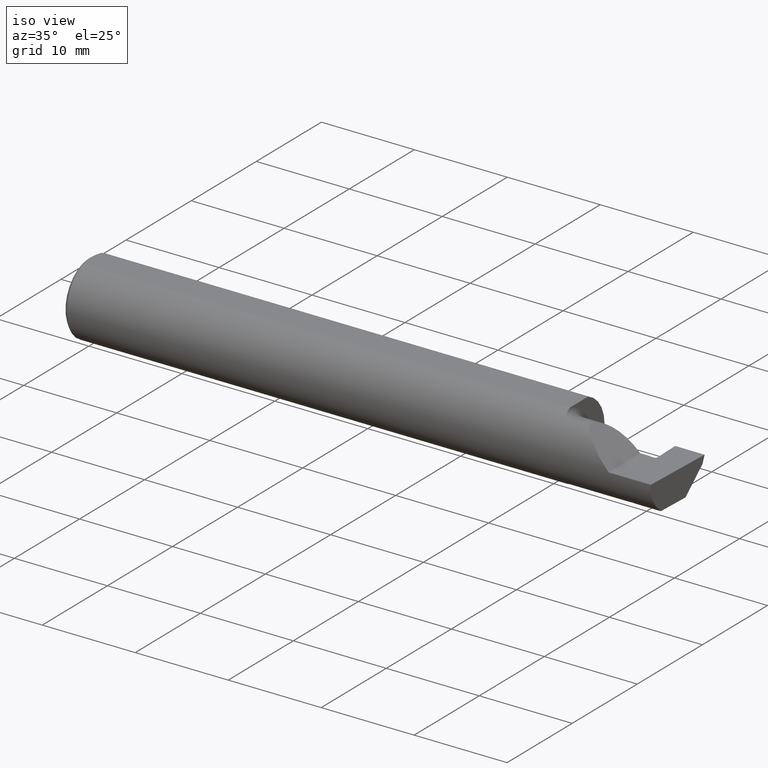
[diagram: clean part render]
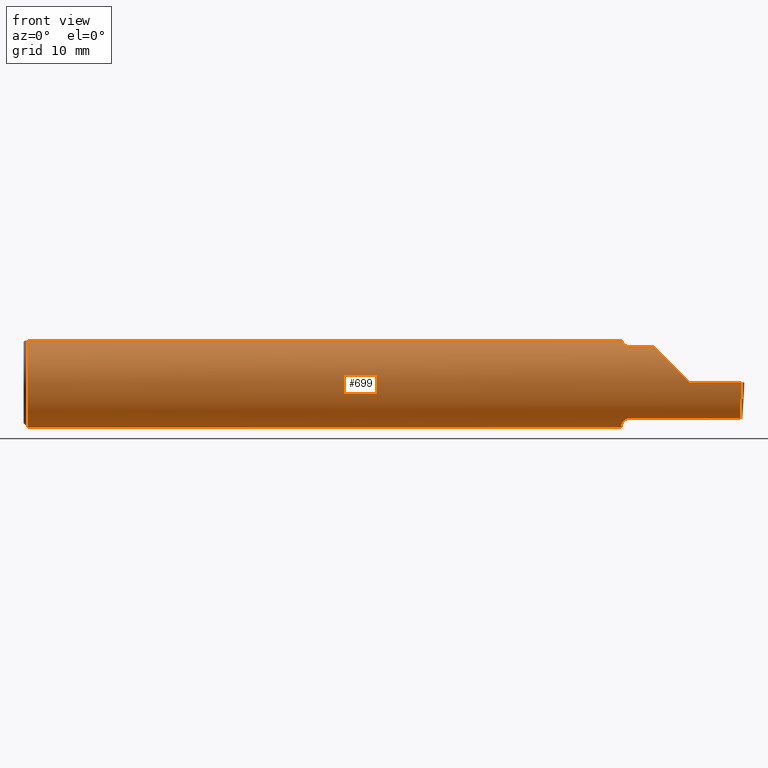
[diagram: tour spotlight — one face highlighted and labeled with its STEP entity id]
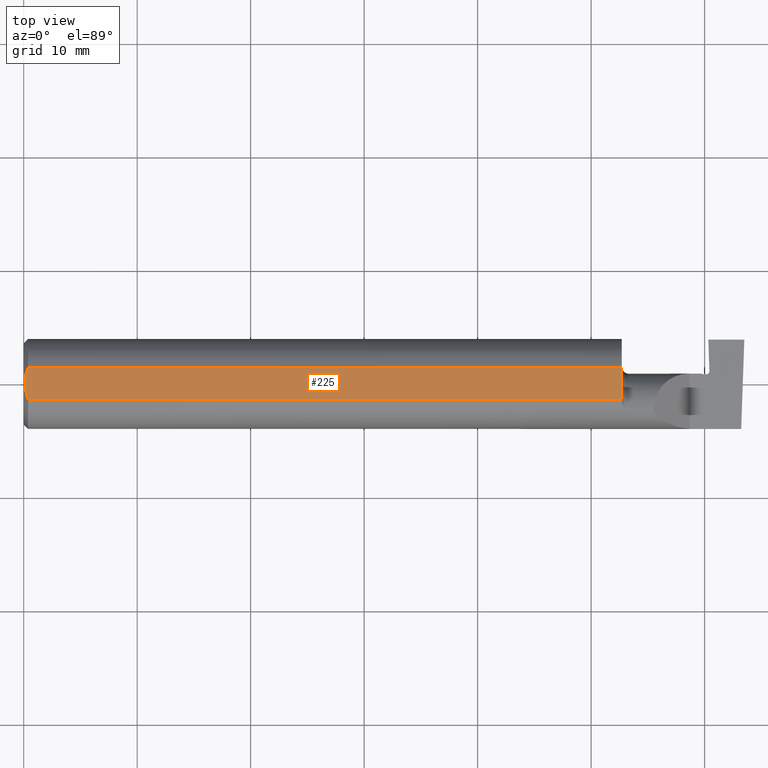
[diagram: tour spotlight — one face highlighted and labeled with its STEP entity id]
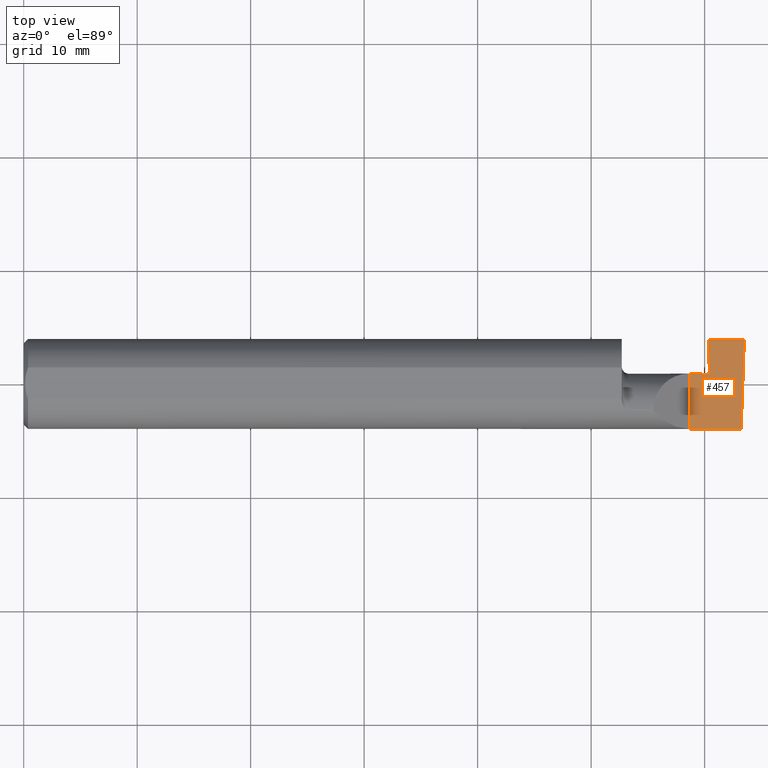
[diagram: tour spotlight — one face highlighted and labeled with its STEP entity id]
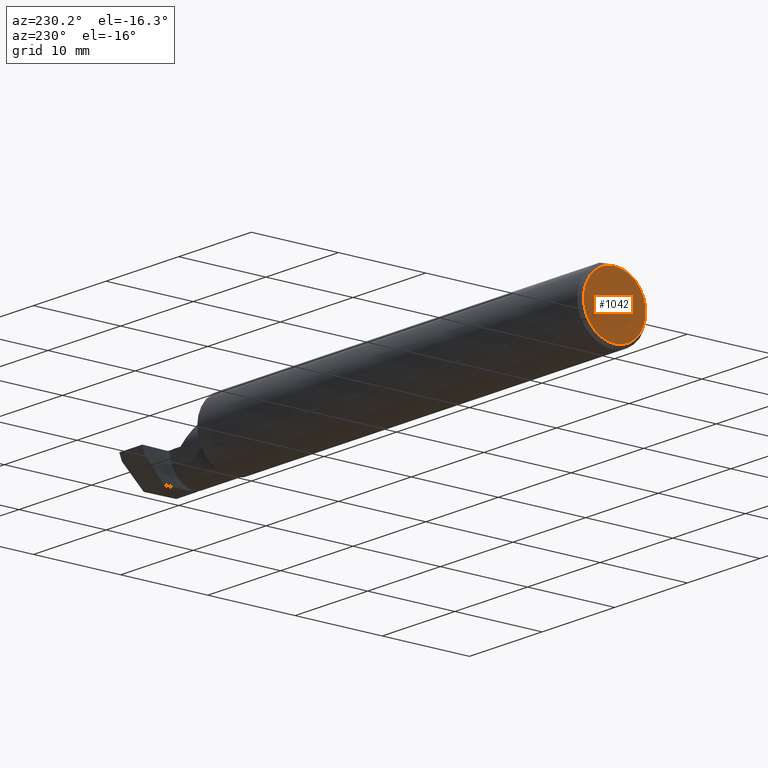
[diagram: tour spotlight — one face highlighted and labeled with its STEP entity id]
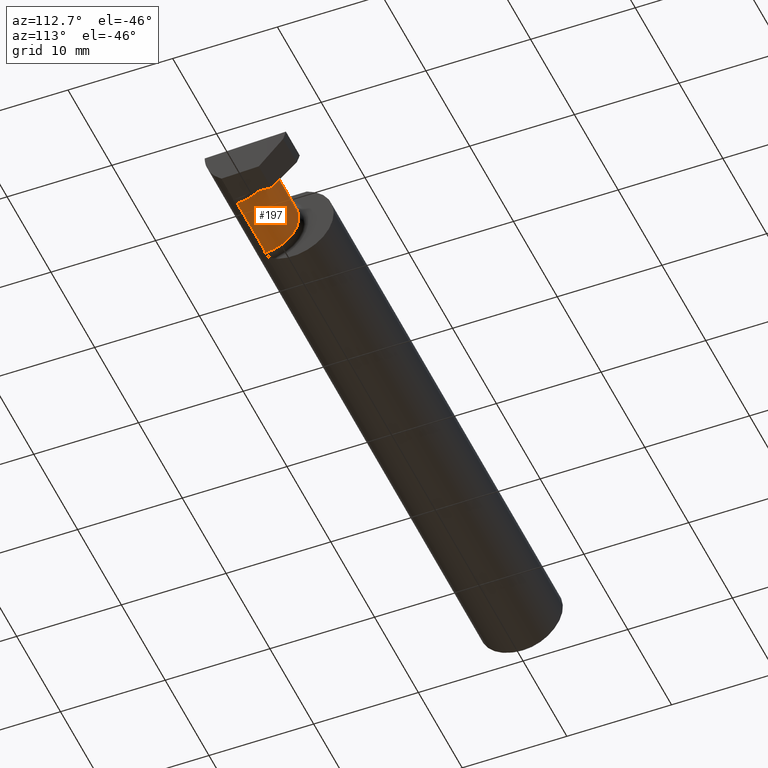
[diagram: tour spotlight — one face highlighted and labeled with its STEP entity id]
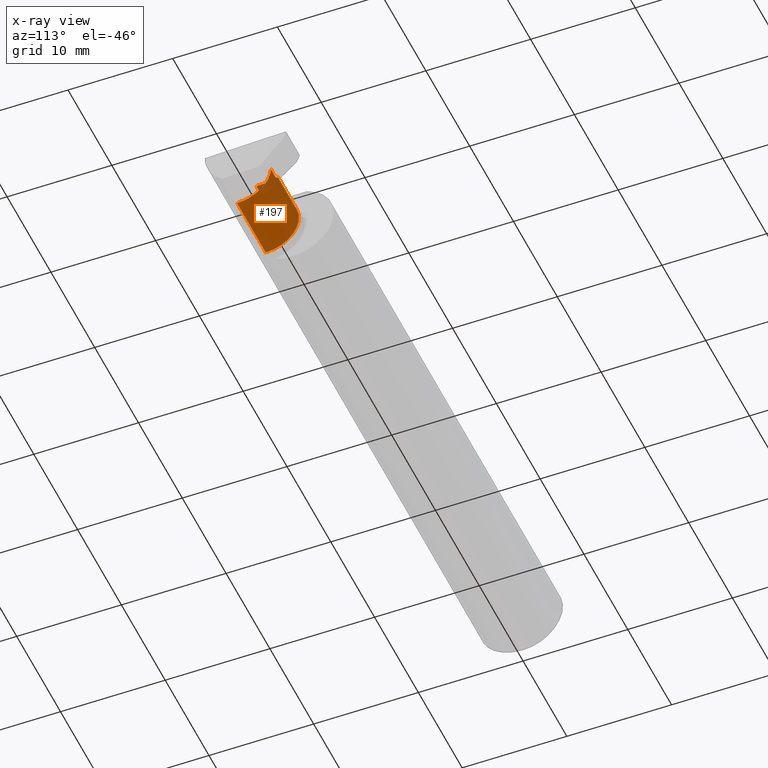
[diagram: x-ray of the same camera — body ghosted, this tour face saturated]
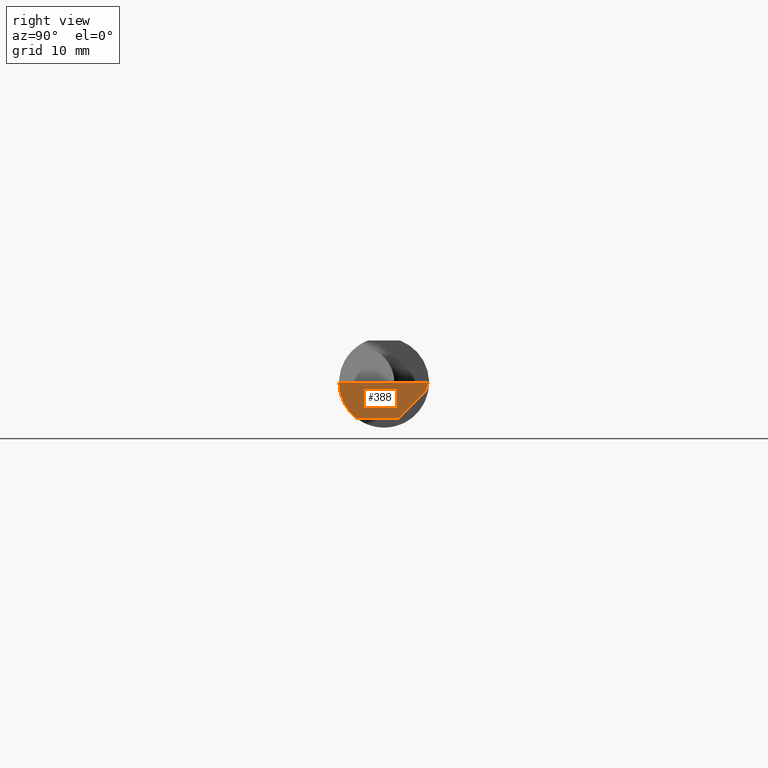
[diagram: tour spotlight — one face highlighted and labeled with its STEP entity id]
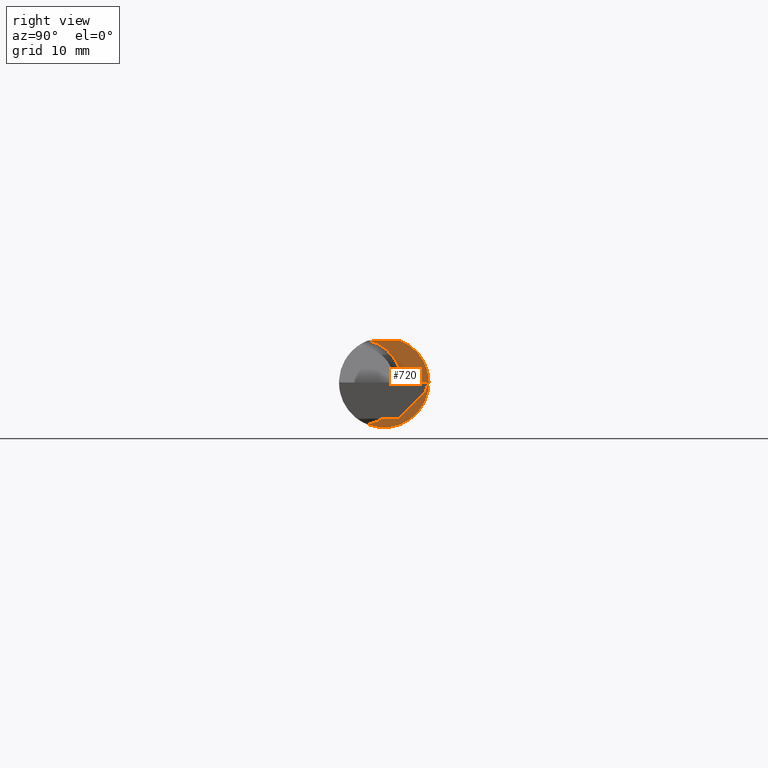
[diagram: tour spotlight — one face highlighted and labeled with its STEP entity id]
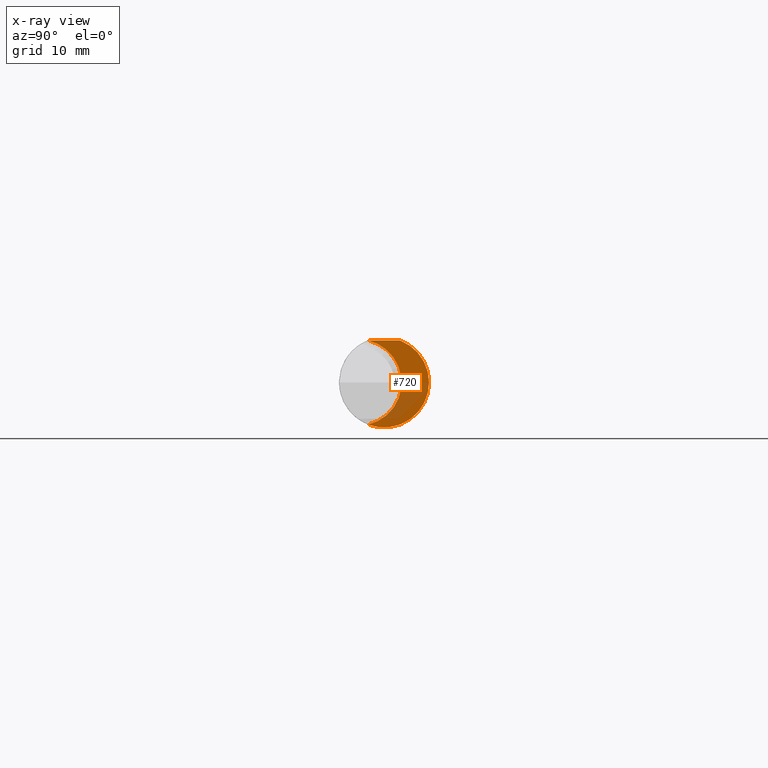
[diagram: x-ray of the same camera — body ghosted, this tour face saturated]
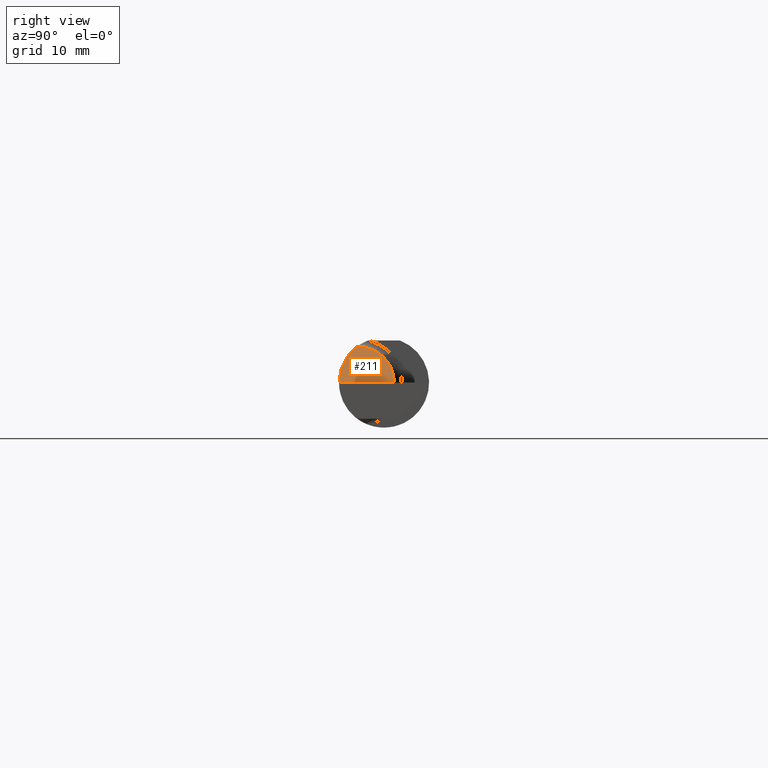
[diagram: tour spotlight — one face highlighted and labeled with its STEP entity id]
A machine part: a face-by-face anatomy tour. The part has 23 B-rep faces; the first image is the clean iso view, then the 8 largest visible faces are spotlighted one at a time (largest first), each with its STEP entity span.

Face 1 — front view, entity #699. In plain terms, the highlighted cylindrical surface (partial cylindrical patch) has radius 3.9649 mm, axis along (-1, -0, -0).
Definition (entity closure, byte-faithful):
#7 = CARTESIAN_POINT ( 'NONE',  ( 2.378688910870730755, -0.09440078289829618996, -0.1243249073414910005 ) ) ;
#14 = VECTOR ( 'NONE', #217, 39.37007874015748143 ) ;
#17 = CARTESIAN_POINT ( 'NONE',  ( 2.369669491292822006, -0.09619361144388398344, -0.1229390056791702796 ) ) ;
#32 = EDGE_CURVE ( 'NONE', #845, #649, #43, .T. ) ;
#33 = CARTESIAN_POINT ( 'NONE',  ( 2.085315048287044171, -0.08709553534231924410, -0.1295667287130569112 ) ) ;
#35 = ORIENTED_EDGE ( 'NONE', *, *, #287, .T. ) ;
#38 = CARTESIAN_POINT ( 'NONE',  ( 2.075000000000000178, 0.05497272050753900657, 0.1460999999999999799 ) ) ;
#39 = CARTESIAN_POINT ( 'NONE',  ( 2.100000000000000089, -0.09360841750841747411, 0.1249186702281520206 ) ) ;
#41 = CARTESIAN_POINT ( 'NONE',  ( 2.487862172267039984, -0.1560999999999999888, -0.05008759057876777804 ) ) ;
#43 = B_SPLINE_CURVE_WITH_KNOTS ( 'NONE', 3,
 ( #353, #219, #722, #56, #1056, #886, #810, #459 ),
 .UNSPECIFIED., .F., .F.,
 ( 4, 2, 2, 4 ),
 ( 2.042507625484096645E-06, 0.0005263182385139293217, 0.0007884561039581517534, 0.001050593969402373968 ),
 .UNSPECIFIED. ) ;
#45 = AXIS2_PLACEMENT_3D ( 'NONE', #963, #788, #1039 ) ;
#48 = CARTESIAN_POINT ( 'NONE',  ( 2.075000000000000622, -0.05502817059483720158, -0.1460791239054557156 ) ) ;
#56 = CARTESIAN_POINT ( 'NONE',  ( 2.078785422859118714, -0.07659497035394380315, 0.1360571150960168119 ) ) ;
#63 = VERTEX_POINT ( 'NONE', #542 ) ;
#64 = VECTOR ( 'NONE', #266, 39.37007874015748143 ) ;
#71 = VERTEX_POINT ( 'NONE', #39 ) ;
#76 = ORIENTED_EDGE ( 'NONE', *, *, #373, .F. ) ;
#77 = CARTESIAN_POINT ( 'NONE',  ( 2.095364775055373219, -0.09360841750841719655, 0.1249186702281522149 ) ) ;
#84 = VECTOR ( 'NONE', #352, 39.37007874015748143 ) ;
#92 = CARTESIAN_POINT ( 'NONE',  ( 2.310000000000000053, -0.1560999999999999888, 2.326828918379970872E-17 ) ) ;
#95 = VERTEX_POINT ( 'NONE', #140 ) ;
#98 = EDGE_CURVE ( 'NONE', #763, #567, #1061, .T. ) ;
#99 = AXIS2_PLACEMENT_3D ( 'NONE', #413, #401, #138 ) ;
#100 = LINE ( 'NONE', #342, #84 ) ;
#104 = CARTESIAN_POINT ( 'NONE',  ( 2.087810002172886925, -0.08909999999996044695, -0.1281733201567834268 ) ) ;
#109 = EDGE_CURVE ( 'NONE', #517, #561, #783, .T. ) ;
#113 = ORIENTED_EDGE ( 'NONE', *, *, #933, .F. ) ;
#114 = CARTESIAN_POINT ( 'NONE',  ( 2.373123753993309215, -0.09636026207880406258, -0.1228084276102588412 ) ) ;
#116 = LINE ( 'NONE', #223, #910 ) ;
#117 = DIRECTION ( 'NONE',  ( -1.000000000000000000, -0.000000000000000000, -0.000000000000000000 ) ) ;
#124 =( BOUNDED_CURVE ( )  B_SPLINE_CURVE ( 3, ( #538, #466, #41, #808 ),
 .UNSPECIFIED., .F., .F. ) 
 B_SPLINE_CURVE_WITH_KNOTS ( ( 4, 4 ),
 ( 5.999185379311402500, 6.926893589830566356 ),
 .UNSPECIFIED. ) 
 CURVE ( )  GEOMETRIC_REPRESENTATION_ITEM ( )  RATIONAL_B_SPLINE_CURVE ( ( 1.000000000000000000, 0.9295565493311498395, 0.9295565493311498395, 1.000000000000000000 ) ) 
 REPRESENTATION_ITEM ( '' )  );
#138 = DIRECTION ( 'NONE',  ( 0.000000000000000000, 0.000000000000000000, 1.000000000000000000 ) ) ;
#140 = CARTESIAN_POINT ( 'NONE',  ( 2.489174561457560220, -0.1560999999999999888, 0.000000000000000000 ) ) ;
#145 = B_SPLINE_CURVE_WITH_KNOTS ( 'NONE', 3,
 ( #394, #582, #310, #650 ),
 .UNSPECIFIED., .F., .F.,
 ( 4, 4 ),
 ( 1.958690481313001990E-07, 0.0003463854958010512543 ),
 .UNSPECIFIED. ) ;
#151 = CARTESIAN_POINT ( 'NONE',  ( 2.488083711217045302, -0.09360841750841747411, -0.1249186702281520206 ) ) ;
#169 = VECTOR ( 'NONE', #117, 39.37007874015748143 ) ;
#173 = CARTESIAN_POINT ( 'NONE',  ( 2.374392721651995775, -0.09642141776643164963, -0.1227604424825109730 ) ) ;
#183 = VERTEX_POINT ( 'NONE', #104 ) ;
#188 = ORIENTED_EDGE ( 'NONE', *, *, #443, .F. ) ;
#190 = CARTESIAN_POINT ( 'NONE',  ( 2.357920788017516145, -0.09360841750841733533, -0.1249186702281520206 ) ) ;
#205 = LINE ( 'NONE', #1047, #14 ) ;
#209 = VERTEX_POINT ( 'NONE', #601 ) ;
#212 = CARTESIAN_POINT ( 'NONE',  ( 2.087810002172223456, -0.08909999999984939689, 0.1281733201569305314 ) ) ;
#217 = DIRECTION ( 'NONE',  ( -1.000000000000000000, -0.000000000000000000, -0.000000000000000000 ) ) ;
#219 = CARTESIAN_POINT ( 'NONE',  ( 2.075000000000000622, -0.06156212810510099109, 0.1436177747480845979 ) ) ;
#223 = CARTESIAN_POINT ( 'NONE',  ( 0.000000000000000000, 0.05497272050753900657, 0.1460999999999999799 ) ) ;
#232 = ORIENTED_EDGE ( 'NONE', *, *, #258, .F. ) ;
#234 = CARTESIAN_POINT ( 'NONE',  ( 2.357920788017516145, -0.09360841750841733533, -0.1249186702281520206 ) ) ;
#250 = ORIENTED_EDGE ( 'NONE', *, *, #687, .F. ) ;
#251 = CARTESIAN_POINT ( 'NONE',  ( 2.215117332916550552, -0.1336908980339254205, 0.09488266708345004241 ) ) ;
#255 = CARTESIAN_POINT ( 'NONE',  ( 2.377800115396954794, -0.09510190349063743498, -0.1237871666001574555 ) ) ;
#258 = EDGE_CURVE ( 'NONE', #209, #812, #526, .T. ) ;
#266 = DIRECTION ( 'NONE',  ( 1.000000000000000000, 0.000000000000000000, 0.000000000000000000 ) ) ;
#272 = VERTEX_POINT ( 'NONE', #190 ) ;
#285 = CARTESIAN_POINT ( 'NONE',  ( 2.075000000000000178, 0.000000000000000000, 0.000000000000000000 ) ) ;
#287 = EDGE_CURVE ( 'NONE', #95, #631, #100, .T. ) ;
#291 = CARTESIAN_POINT ( 'NONE',  ( 2.083312875394042418, -0.08466547365232431066, -0.1311808389156052246 ) ) ;
#301 = CARTESIAN_POINT ( 'NONE',  ( 2.185081329771848768, -0.09360841750841755737, 0.1249186702281519651 ) ) ;
#305 = CIRCLE ( 'NONE', #894, 0.1560999999999999888 ) ;
#308 = VERTEX_POINT ( 'NONE', #695 ) ;
#310 = CARTESIAN_POINT ( 'NONE',  ( 2.091077244708473337, -0.09172492714866078978, -0.1263485955677199346 ) ) ;
#313 = ORIENTED_EDGE ( 'NONE', *, *, #795, .T. ) ;
#334 = B_SPLINE_CURVE_WITH_KNOTS ( 'NONE', 3,
 ( #760, #7, #255, #598, #173, #512 ),
 .UNSPECIFIED., .F., .F.,
 ( 4, 2, 4 ),
 ( 0.0003747943054145155806, 0.0004686591617448204045, 0.0005625240180751251741 ),
 .UNSPECIFIED. ) ;
#342 = CARTESIAN_POINT ( 'NONE',  ( 3.749399456654646757E-32, -0.1560999999999999888, 3.061616997868384127E-16 ) ) ;
#352 = DIRECTION ( 'NONE',  ( -1.000000000000000000, -0.000000000000000000, -0.000000000000000000 ) ) ;
#353 = CARTESIAN_POINT ( 'NONE',  ( 2.075000000000000622, -0.05502817059483720158, 0.1460791239054557156 ) ) ;
#356 = B_SPLINE_CURVE_WITH_KNOTS ( 'NONE', 3,
 ( #496, #662, #77, #909 ),
 .UNSPECIFIED., .F., .F.,
 ( 4, 4 ),
 ( 0.001050593969402373968, 0.001393966686689396706 ),
 .UNSPECIFIED. ) ;
#361 = ORIENTED_EDGE ( 'NONE', *, *, #589, .F. ) ;
#372 = DIRECTION ( 'NONE',  ( 0.000000000000000000, 0.000000000000000000, -1.000000000000000000 ) ) ;
#373 = EDGE_CURVE ( 'NONE', #812, #845, #305, .T. ) ;
#386 = ORIENTED_EDGE ( 'NONE', *, *, #1009, .F. ) ;
#389 = CARTESIAN_POINT ( 'NONE',  ( 2.080057722617700389, -0.07943655142502253907, -0.1344116409581927463 ) ) ;
#394 = CARTESIAN_POINT ( 'NONE',  ( 2.100000000000000089, -0.09360841750841744635, -0.1249186702281520206 ) ) ;
#396 = B_SPLINE_CURVE_WITH_KNOTS ( 'NONE', 3,
 ( #625, #879, #593, #17, #453, #690, #679, #684, #935, #708 ),
 .UNSPECIFIED., .F., .F.,
 ( 4, 3, 3, 4 ),
 ( 6.965946224451063445E-18, 8.790291534921515276E-05, 0.0002197572917844225278, 0.0003516116715391578236 ),
 .UNSPECIFIED. ) ;
#401 = DIRECTION ( 'NONE',  ( -1.000000000000000000, -0.000000000000000000, -0.000000000000000000 ) ) ;
#413 = CARTESIAN_POINT ( 'NONE',  ( 0.000000000000000000, 0.000000000000000000, 0.000000000000000000 ) ) ;
#416 = LINE ( 'NONE', #830, #733 ) ;
#422 =( BOUNDED_CURVE ( )  B_SPLINE_CURVE ( 3, ( #92, #927, #251, #429 ),
 .UNSPECIFIED., .F., .F. ) 
 B_SPLINE_CURVE_WITH_KNOTS ( ( 4, 4 ),
 ( 4.712388980384689674, 5.640097190903853530 ),
 .UNSPECIFIED. ) 
 CURVE ( )  GEOMETRIC_REPRESENTATION_ITEM ( )  RATIONAL_B_SPLINE_CURVE ( ( 1.000000000000000000, 0.9295565493311498395, 0.9295565493311498395, 1.000000000000000000 ) ) 
 REPRESENTATION_ITEM ( '' )  );
#428 = ORIENTED_EDGE ( 'NONE', *, *, #537, .T. ) ;
#429 = CARTESIAN_POINT ( 'NONE',  ( 2.185081329771848768, -0.09360841750841755737, 0.1249186702281519651 ) ) ;
#434 = CARTESIAN_POINT ( 'NONE',  ( 2.075000000000000178, -0.05497272050753899270, 0.1460999999999999799 ) ) ;
#443 = EDGE_CURVE ( 'NONE', #561, #855, #116, .T. ) ;
#448 = B_SPLINE_CURVE_WITH_KNOTS ( 'NONE', 3,
 ( #973, #33, #291, #389, #456, #800, #633, #1031 ),
 .UNSPECIFIED., .F., .F.,
 ( 4, 2, 2, 4 ),
 ( 0.0003463854958010512543, 0.0006107451645894995760, 0.0008751048333779480604, 0.001403824170954845246 ),
 .UNSPECIFIED. ) ;
#449 = DIRECTION ( 'NONE',  ( -1.000000000000000000, -0.000000000000000000, -0.000000000000000000 ) ) ;
#453 = CARTESIAN_POINT ( 'NONE',  ( 2.367942363372584680, -0.09611019727081615560, -0.1230042730896936665 ) ) ;
#456 = CARTESIAN_POINT ( 'NONE',  ( 2.078804698179401278, -0.07664326672408296182, -0.1360300949145557547 ) ) ;
#459 = CARTESIAN_POINT ( 'NONE',  ( 2.087810002172223456, -0.08909999999984939689, 0.1281733201569305314 ) ) ;
#466 = CARTESIAN_POINT ( 'NONE',  ( 2.487470999995594845, -0.1336908980339253650, -0.09488266708345007017 ) ) ;
#480 = DIRECTION ( 'NONE',  ( 1.000000000000000000, 0.000000000000000000, 0.000000000000000000 ) ) ;
#486 = AXIS2_PLACEMENT_3D ( 'NONE', #710, #449, #1036 ) ;
#496 = CARTESIAN_POINT ( 'NONE',  ( 2.087810002172223456, -0.08909999999984939689, 0.1281733201569305314 ) ) ;
#511 = ORIENTED_EDGE ( 'NONE', *, *, #638, .F. ) ;
#512 = CARTESIAN_POINT ( 'NONE',  ( 2.373123753993309215, -0.09636026207880406258, -0.1228084276102588412 ) ) ;
#517 = VERTEX_POINT ( 'NONE', #48 ) ;
#526 = LINE ( 'NONE', #1027, #64 ) ;
#537 = EDGE_CURVE ( 'NONE', #763, #95, #124, .T. ) ;
#538 = CARTESIAN_POINT ( 'NONE',  ( 2.488083711217045302, -0.09360841750841747411, -0.1249186702281520206 ) ) ;
#541 = DIRECTION ( 'NONE',  ( 0.000000000000000000, 0.000000000000000000, -1.000000000000000000 ) ) ;
#542 = CARTESIAN_POINT ( 'NONE',  ( 0.01499999999999999944, 0.000000000000000000, -0.1560999999999999888 ) ) ;
#548 = ORIENTED_EDGE ( 'NONE', *, *, #755, .F. ) ;
#560 = EDGE_CURVE ( 'NONE', #855, #63, #961, .T. ) ;
#561 = VERTEX_POINT ( 'NONE', #38 ) ;
#567 = VERTEX_POINT ( 'NONE', #876 ) ;
#575 = EDGE_CURVE ( 'NONE', #272, #1063, #205, .T. ) ;
#582 = CARTESIAN_POINT ( 'NONE',  ( 2.095361275910303966, -0.09360841750841726594, -0.1249186702281521871 ) ) ;
#589 = EDGE_CURVE ( 'NONE', #183, #517, #448, .T. ) ;
#591 = CARTESIAN_POINT ( 'NONE',  ( 2.100000000000000089, -0.09360841750841744635, -0.1249186702281520206 ) ) ;
#593 = CARTESIAN_POINT ( 'NONE',  ( 2.370820909878536664, -0.09624922089125434455, -0.1228954940732043533 ) ) ;
#598 = CARTESIAN_POINT ( 'NONE',  ( 2.375639801973085330, -0.09613210443034851671, -0.1229888334778007769 ) ) ;
#601 = CARTESIAN_POINT ( 'NONE',  ( 0.01499999999999999944, -0.05497272050753900657, 0.1460999999999999799 ) ) ;
#611 = CIRCLE ( 'NONE', #45, 0.1560999999999999888 ) ;
#622 = CARTESIAN_POINT ( 'NONE',  ( 2.310000000000000053, -0.1560999999999999888, 2.326828918379970872E-17 ) ) ;
#625 = CARTESIAN_POINT ( 'NONE',  ( 2.373123753993309215, -0.09636026207880406258, -0.1228084276102588412 ) ) ;
#631 = VERTEX_POINT ( 'NONE', #622 ) ;
#633 = CARTESIAN_POINT ( 'NONE',  ( 2.074999999999999289, -0.06152246774674054869, -0.1436327148497734685 ) ) ;
#634 = DIRECTION ( 'NONE',  ( -1.000000000000000000, -0.000000000000000000, -0.000000000000000000 ) ) ;
#636 = ORIENTED_EDGE ( 'NONE', *, *, #98, .F. ) ;
#638 = EDGE_CURVE ( 'NONE', #63, #209, #611, .T. ) ;
#649 = VERTEX_POINT ( 'NONE', #212 ) ;
#650 = CARTESIAN_POINT ( 'NONE',  ( 2.087810002172886925, -0.08909999999996044695, -0.1281733201567834268 ) ) ;
#662 = CARTESIAN_POINT ( 'NONE',  ( 2.091072683443918834, -0.09172126259464265241, 0.1263511429915042950 ) ) ;
#664 = B_SPLINE_CURVE_WITH_KNOTS ( 'NONE', 3,
 ( #989, #737, #1072, #234 ),
 .UNSPECIFIED., .F., .F.,
 ( 4, 4 ),
 ( 2.757472288696065974E-15, 7.527400344458962285E-05 ),
 .UNSPECIFIED. ) ;
#674 = ORIENTED_EDGE ( 'NONE', *, *, #109, .F. ) ;
#679 = CARTESIAN_POINT ( 'NONE',  ( 2.364488123115890517, -0.09594296939955300474, -0.1231347092529009452 ) ) ;
#682 = ORIENTED_EDGE ( 'NONE', *, *, #32, .F. ) ;
#684 = CARTESIAN_POINT ( 'NONE',  ( 2.362761005538993153, -0.09585928893871212275, -0.1231999106241674913 ) ) ;
#687 = EDGE_CURVE ( 'NONE', #649, #71, #356, .T. ) ;
#690 = CARTESIAN_POINT ( 'NONE',  ( 2.366215240649306661, -0.09602664985828718303, -0.1230695078832758915 ) ) ;
#695 = CARTESIAN_POINT ( 'NONE',  ( 2.359306785914701887, -0.09569152907671622799, -0.1233302122877183854 ) ) ;
#697 = AXIS2_PLACEMENT_3D ( 'NONE', #285, #480, #372 ) ;
#699 = ADVANCED_FACE ( 'NONE', ( #1079 ), #899, .T. ) ;
#708 = CARTESIAN_POINT ( 'NONE',  ( 2.359306785914701887, -0.09569152907671622799, -0.1233302122877183854 ) ) ;
#710 = CARTESIAN_POINT ( 'NONE',  ( 0.01499999999999999944, 0.000000000000000000, 0.000000000000000000 ) ) ;
#721 = DIRECTION ( 'NONE',  ( 1.000000000000000000, 0.000000000000000000, 0.000000000000000000 ) ) ;
#722 = CARTESIAN_POINT ( 'NONE',  ( 2.075844056398638227, -0.06777540567362916324, 0.1407770456887921240 ) ) ;
#733 = VECTOR ( 'NONE', #1082, 39.37007874015748143 ) ;
#736 = VERTEX_POINT ( 'NONE', #301 ) ;
#737 = CARTESIAN_POINT ( 'NONE',  ( 2.358845075908450273, -0.09500150499841204799, -0.1238655998293524130 ) ) ;
#742 = ORIENTED_EDGE ( 'NONE', *, *, #852, .F. ) ;
#755 = EDGE_CURVE ( 'NONE', #1063, #183, #145, .T. ) ;
#760 = CARTESIAN_POINT ( 'NONE',  ( 2.379446652605736734, -0.09360841750841730757, -0.1249186702281520206 ) ) ;
#763 = VERTEX_POINT ( 'NONE', #151 ) ;
#764 = CARTESIAN_POINT ( 'NONE',  ( 0.01499999999999999771, 0.05497272050753900657, 0.1460999999999999799 ) ) ;
#767 = EDGE_CURVE ( 'NONE', #308, #272, #664, .T. ) ;
#783 = CIRCLE ( 'NONE', #697, 0.1560999999999999888 ) ;
#788 = DIRECTION ( 'NONE',  ( -1.000000000000000000, -0.000000000000000000, -0.000000000000000000 ) ) ;
#795 = EDGE_CURVE ( 'NONE', #631, #736, #422, .T. ) ;
#800 = CARTESIAN_POINT ( 'NONE',  ( 2.075847904676646039, -0.06780574120017837658, -0.1407631332654325218 ) ) ;
#805 = ORIENTED_EDGE ( 'NONE', *, *, #575, .F. ) ;
#808 = CARTESIAN_POINT ( 'NONE',  ( 2.489174561457560220, -0.1560999999999999888, 0.000000000000000000 ) ) ;
#810 = CARTESIAN_POINT ( 'NONE',  ( 2.085319203512566943, -0.08709887368156808696, 0.1295644080582772362 ) ) ;
#812 = VERTEX_POINT ( 'NONE', #434 ) ;
#830 = CARTESIAN_POINT ( 'NONE',  ( 2.234999999999999876, -0.09360841750841747411, 0.1249186702281520206 ) ) ;
#845 = VERTEX_POINT ( 'NONE', #1007 ) ;
#852 = EDGE_CURVE ( 'NONE', #914, #308, #396, .T. ) ;
#855 = VERTEX_POINT ( 'NONE', #764 ) ;
#876 = CARTESIAN_POINT ( 'NONE',  ( 2.379446652605736734, -0.09360841750841730757, -0.1249186702281520206 ) ) ;
#879 = CARTESIAN_POINT ( 'NONE',  ( 2.371972330778028937, -0.09630477112142363239, -0.1228519679706415596 ) ) ;
#886 = CARTESIAN_POINT ( 'NONE',  ( 2.083314215045239060, -0.08466760255782143640, 0.1311795204669787829 ) ) ;
#894 = AXIS2_PLACEMENT_3D ( 'NONE', #1040, #721, #541 ) ;
#899 = CYLINDRICAL_SURFACE ( 'NONE', #99, 0.1560999999999999888 ) ;
#908 = ORIENTED_EDGE ( 'NONE', *, *, #767, .F. ) ;
#909 = CARTESIAN_POINT ( 'NONE',  ( 2.100000000000000089, -0.09360841750841747411, 0.1249186702281520206 ) ) ;
#910 = VECTOR ( 'NONE', #634, 39.37007874015748143 ) ;
#914 = VERTEX_POINT ( 'NONE', #114 ) ;
#927 = CARTESIAN_POINT ( 'NONE',  ( 2.259912409421232837, -0.1560999999999999888, 0.05008759057876772947 ) ) ;
#933 = EDGE_CURVE ( 'NONE', #567, #914, #334, .T. ) ;
#935 = CARTESIAN_POINT ( 'NONE',  ( 2.361033893141088136, -0.09577547543113106021, -0.1232650785718814729 ) ) ;
#961 = CIRCLE ( 'NONE', #486, 0.1560999999999999888 ) ;
#963 = CARTESIAN_POINT ( 'NONE',  ( 0.01499999999999999944, 0.000000000000000000, 0.000000000000000000 ) ) ;
#971 = CARTESIAN_POINT ( 'NONE',  ( 2.234999999999999876, -0.09360841750841747411, -0.1249186702281520206 ) ) ;
#973 = CARTESIAN_POINT ( 'NONE',  ( 2.087810002172886925, -0.08909999999996044695, -0.1281733201567834268 ) ) ;
#989 = CARTESIAN_POINT ( 'NONE',  ( 2.359306785914701887, -0.09569152907671622799, -0.1233302122877183854 ) ) ;
#1007 = CARTESIAN_POINT ( 'NONE',  ( 2.075000000000000622, -0.05502817059483720158, 0.1460791239054557156 ) ) ;
#1009 = EDGE_CURVE ( 'NONE', #71, #736, #416, .T. ) ;
#1027 = CARTESIAN_POINT ( 'NONE',  ( 0.000000000000000000, -0.05497272050753900657, 0.1460999999999999799 ) ) ;
#1028 = EDGE_LOOP ( 'NONE', ( #636, #428, #35, #313, #386, #250, #682, #76, #232, #511, #1057, #188, #674, #361, #548, #805, #908, #742, #113 ) ) ;
#1031 = CARTESIAN_POINT ( 'NONE',  ( 2.075000000000000622, -0.05502817059483720158, -0.1460791239054557156 ) ) ;
#1036 = DIRECTION ( 'NONE',  ( 0.000000000000000000, 0.000000000000000000, 1.000000000000000000 ) ) ;
#1039 = DIRECTION ( 'NONE',  ( 0.000000000000000000, 0.000000000000000000, 1.000000000000000000 ) ) ;
#1040 = CARTESIAN_POINT ( 'NONE',  ( 2.075000000000000178, 0.000000000000000000, 0.000000000000000000 ) ) ;
#1047 = CARTESIAN_POINT ( 'NONE',  ( 2.234999999999999876, -0.09360841750841747411, -0.1249186702281520206 ) ) ;
#1056 = CARTESIAN_POINT ( 'NONE',  ( 2.080056522840238120, -0.07943464720522720734, 0.1344128205797973930 ) ) ;
#1057 = ORIENTED_EDGE ( 'NONE', *, *, #560, .F. ) ;
#1061 = LINE ( 'NONE', #971, #169 ) ;
#1063 = VERTEX_POINT ( 'NONE', #591 ) ;
#1072 = CARTESIAN_POINT ( 'NONE',  ( 2.358383056854330473, -0.09430709230132512666, -0.1243951148492990072 ) ) ;
#1079 = FACE_OUTER_BOUND ( 'NONE', #1028, .T. ) ;
#1082 = DIRECTION ( 'NONE',  ( 1.000000000000000000, 0.000000000000000000, 0.000000000000000000 ) ) ;

Face 2 — top view, entity #225. In plain terms, the highlighted planar face has unit normal (0, -0, 1).
Definition (entity closure, byte-faithful):
#38 = CARTESIAN_POINT ( 'NONE',  ( 2.075000000000000178, 0.05497272050753900657, 0.1460999999999999799 ) ) ;
#64 = VECTOR ( 'NONE', #266, 39.37007874015748143 ) ;
#116 = LINE ( 'NONE', #223, #910 ) ;
#135 = CARTESIAN_POINT ( 'NONE',  ( 0.01499999999999999944, -0.05497272050753900657, 0.1460999999999999799 ) ) ;
#137 = ORIENTED_EDGE ( 'NONE', *, *, #443, .T. ) ;
#182 = DIRECTION ( 'NONE',  ( 1.000000000000000000, 0.000000000000000000, -0.000000000000000000 ) ) ;
#186 = VECTOR ( 'NONE', #556, 39.37007874015748143 ) ;
#187 = DIRECTION ( 'NONE',  ( 0.000000000000000000, -0.000000000000000000, 1.000000000000000000 ) ) ;
#195 = ORIENTED_EDGE ( 'NONE', *, *, #412, .T. ) ;
#209 = VERTEX_POINT ( 'NONE', #601 ) ;
#213 = LINE ( 'NONE', #551, #186 ) ;
#218 = CARTESIAN_POINT ( 'NONE',  ( 0.01187749995209270472, 0.04610609988228752537, 0.1460999999999999799 ) ) ;
#223 = CARTESIAN_POINT ( 'NONE',  ( 0.000000000000000000, 0.05497272050753900657, 0.1460999999999999799 ) ) ;
#225 = ADVANCED_FACE ( 'NONE', ( #520 ), #943, .T. ) ;
#258 = EDGE_CURVE ( 'NONE', #209, #812, #526, .T. ) ;
#266 = DIRECTION ( 'NONE',  ( 1.000000000000000000, 0.000000000000000000, 0.000000000000000000 ) ) ;
#297 = CARTESIAN_POINT ( 'NONE',  ( 0.004999999999999897755, -0.009384304010803548590, 0.1460999999999999521 ) ) ;
#307 = AXIS2_PLACEMENT_3D ( 'NONE', #776, #187, #182 ) ;
#380 = EDGE_CURVE ( 'NONE', #855, #500, #807, .T. ) ;
#381 = ORIENTED_EDGE ( 'NONE', *, *, #425, .T. ) ;
#412 = EDGE_CURVE ( 'NONE', #812, #561, #213, .T. ) ;
#425 = EDGE_CURVE ( 'NONE', #500, #209, #1054, .T. ) ;
#434 = CARTESIAN_POINT ( 'NONE',  ( 2.075000000000000178, -0.05497272050753899270, 0.1460999999999999799 ) ) ;
#443 = EDGE_CURVE ( 'NONE', #561, #855, #116, .T. ) ;
#462 = CARTESIAN_POINT ( 'NONE',  ( 0.004999999999999936787, 2.057148927093534050E-17, 0.1460999999999999799 ) ) ;
#495 = ORIENTED_EDGE ( 'NONE', *, *, #380, .T. ) ;
#500 = VERTEX_POINT ( 'NONE', #514 ) ;
#514 = CARTESIAN_POINT ( 'NONE',  ( 0.004999999999999936787, 2.057148927093534050E-17, 0.1460999999999999799 ) ) ;
#520 = FACE_OUTER_BOUND ( 'NONE', #898, .T. ) ;
#526 = LINE ( 'NONE', #1027, #64 ) ;
#551 = CARTESIAN_POINT ( 'NONE',  ( 2.075000000000000178, -0.1561000000000000165, 0.1460999999999999799 ) ) ;
#556 = DIRECTION ( 'NONE',  ( -0.000000000000000000, 1.000000000000000000, 0.000000000000000000 ) ) ;
#561 = VERTEX_POINT ( 'NONE', #38 ) ;
#601 = CARTESIAN_POINT ( 'NONE',  ( 0.01499999999999999944, -0.05497272050753900657, 0.1460999999999999799 ) ) ;
#629 = CARTESIAN_POINT ( 'NONE',  ( 0.01499999999999999771, 0.05497272050753900657, 0.1460999999999999799 ) ) ;
#634 = DIRECTION ( 'NONE',  ( -1.000000000000000000, -0.000000000000000000, -0.000000000000000000 ) ) ;
#711 = CARTESIAN_POINT ( 'NONE',  ( 0.004999999999999936787, 2.057148927093534050E-17, 0.1460999999999999799 ) ) ;
#726 = CARTESIAN_POINT ( 'NONE',  ( 0.01190375560897317594, -0.04618065518901644934, 0.1460999999999999799 ) ) ;
#759 = ORIENTED_EDGE ( 'NONE', *, *, #258, .T. ) ;
#764 = CARTESIAN_POINT ( 'NONE',  ( 0.01499999999999999771, 0.05497272050753900657, 0.1460999999999999799 ) ) ;
#776 = CARTESIAN_POINT ( 'NONE',  ( 2.500000000000000000, -0.1561000000000000165, 0.1460999999999999799 ) ) ;
#794 = CARTESIAN_POINT ( 'NONE',  ( 0.009356849677355947789, -0.03706298561014172849, 0.1460999999999999799 ) ) ;
#807 = B_SPLINE_CURVE_WITH_KNOTS ( 'NONE', 3,
 ( #629, #218, #957, #889, #895, #711 ),
 .UNSPECIFIED., .F., .F.,
 ( 4, 2, 4 ),
 ( 0.003294562426666346362, 0.003999440028384116178, 0.004704317630101885993 ),
 .UNSPECIFIED. ) ;
#812 = VERTEX_POINT ( 'NONE', #434 ) ;
#855 = VERTEX_POINT ( 'NONE', #764 ) ;
#889 = CARTESIAN_POINT ( 'NONE',  ( 0.005929349363808920914, 0.01879672308419500643, 0.1460999999999999799 ) ) ;
#895 = CARTESIAN_POINT ( 'NONE',  ( 0.004999999999999902960, 0.009391435229055663386, 0.1460999999999999799 ) ) ;
#898 = EDGE_LOOP ( 'NONE', ( #759, #195, #137, #495, #381 ) ) ;
#910 = VECTOR ( 'NONE', #634, 39.37007874015748143 ) ;
#943 = PLANE ( 'NONE',  #307 ) ;
#957 = CARTESIAN_POINT ( 'NONE',  ( 0.009371209226503902576, 0.03711161584255317364, 0.1461000000000000076 ) ) ;
#970 = CARTESIAN_POINT ( 'NONE',  ( 0.005910707775482238607, -0.01866948012536270504, 0.1461000000000000076 ) ) ;
#1027 = CARTESIAN_POINT ( 'NONE',  ( 0.000000000000000000, -0.05497272050753900657, 0.1460999999999999799 ) ) ;
#1054 = B_SPLINE_CURVE_WITH_KNOTS ( 'NONE', 3,
 ( #462, #297, #970, #794, #726, #135 ),
 .UNSPECIFIED., .F., .F.,
 ( 4, 2, 4 ),
 ( 0.004704317630101885993, 0.005408659995628783967, 0.006113002361155681942 ),
 .UNSPECIFIED. ) ;

Face 3 — top view, entity #457. In plain terms, the highlighted planar face has unit normal (-0, 0, -1).
Definition (entity closure, byte-faithful):
#1 = ORIENTED_EDGE ( 'NONE', *, *, #371, .F. ) ;
#2 = CARTESIAN_POINT ( 'NONE',  ( 2.355000000003260041, 0.03390000000032495492, -4.667522306234282161E-11 ) ) ;
#15 = CARTESIAN_POINT ( 'NONE',  ( 2.378829097470394949, 0.04424899496707573876, 1.288464915970864505E-11 ) ) ;
#20 =( BOUNDED_CURVE ( )  B_SPLINE_CURVE ( 3, ( #15, #432, #766, #270 ),
 .UNSPECIFIED., .F., .F. ) 
 B_SPLINE_CURVE_WITH_KNOTS ( ( 4, 4 ),
 ( 1.084202172485504434E-18, 0.0004056548995604356651 ),
 .UNSPECIFIED. ) 
 CURVE ( )  GEOMETRIC_REPRESENTATION_ITEM ( )  RATIONAL_B_SPLINE_CURVE ( ( 1.000000000000000000, 0.7964389136393329460, 0.7964389136393329460, 1.000000000000000000 ) ) 
 REPRESENTATION_ITEM ( '' )  );
#21 = EDGE_CURVE ( 'NONE', #818, #953, #369, .T. ) ;
#22 = CARTESIAN_POINT ( 'NONE',  ( 2.353000000000368352, 0.03589999999963087995, 1.261023972094320948E-17 ) ) ;
#36 = DIRECTION ( 'NONE',  ( -0.03489949670249362784, -0.9993908270190959842, 0.000000000000000000 ) ) ;
#42 = CARTESIAN_POINT ( 'NONE',  ( 2.368835189204282266, 0.03390000000002178077, -4.551625647363354908E-11 ) ) ;
#75 = CARTESIAN_POINT ( 'NONE',  ( 2.353000000000368352, 0.03589999999963087995, 1.261023972094320948E-17 ) ) ;
#80 = CARTESIAN_POINT ( 'NONE',  ( 2.500000000000000000, 0.1539000000000000090, 0.000000000000000000 ) ) ;
#81 = VERTEX_POINT ( 'NONE', #635 ) ;
#84 = VECTOR ( 'NONE', #352, 39.37007874015748143 ) ;
#91 = VERTEX_POINT ( 'NONE', #475 ) ;
#95 = VERTEX_POINT ( 'NONE', #140 ) ;
#100 = LINE ( 'NONE', #342, #84 ) ;
#112 = PLANE ( 'NONE',  #539 ) ;
#119 = CARTESIAN_POINT ( 'NONE',  ( 2.355000000003260041, 0.03390000000032495492, -4.667522306234282161E-11 ) ) ;
#126 = FACE_OUTER_BOUND ( 'NONE', #464, .T. ) ;
#131 = VERTEX_POINT ( 'NONE', #253 ) ;
#140 = CARTESIAN_POINT ( 'NONE',  ( 2.489174561457560220, -0.1560999999999999888, 0.000000000000000000 ) ) ;
#181 = EDGE_CURVE ( 'NONE', #131, #460, #20, .T. ) ;
#206 = DIRECTION ( 'NONE',  ( 1.000000000000000000, -0.000000000000000000, -0.000000000000000000 ) ) ;
#221 = ORIENTED_EDGE ( 'NONE', *, *, #1075, .F. ) ;
#253 = CARTESIAN_POINT ( 'NONE',  ( 2.378829097470394949, 0.04424899496707573876, 1.288464915970864505E-11 ) ) ;
#270 = CARTESIAN_POINT ( 'NONE',  ( 2.368835189204282266, 0.03390000000002178077, -4.551625647363354908E-11 ) ) ;
#287 = EDGE_CURVE ( 'NONE', #95, #631, #100, .T. ) ;
#309 = VECTOR ( 'NONE', #825, 39.37007874015748143 ) ;
#332 = CARTESIAN_POINT ( 'NONE',  ( 2.310000000000000053, -0.2000000000000000111, 2.326828918379970872E-17 ) ) ;
#342 = CARTESIAN_POINT ( 'NONE',  ( 3.749399456654646757E-32, -0.1560999999999999888, 3.061616997868384127E-16 ) ) ;
#352 = DIRECTION ( 'NONE',  ( -1.000000000000000000, -0.000000000000000000, -0.000000000000000000 ) ) ;
#357 = ORIENTED_EDGE ( 'NONE', *, *, #409, .T. ) ;
#368 = CARTESIAN_POINT ( 'NONE',  ( 2.368835189204282266, 0.03390000000002178077, -4.551625647363354908E-11 ) ) ;
#369 = B_SPLINE_CURVE_WITH_KNOTS ( 'NONE', 1,
 ( #773, #22 ),
 .UNSPECIFIED., .F., .F.,
 ( 2, 2 ),
 ( 0.000000000000000000, 7.184204900801827306E-05 ),
 .UNSPECIFIED. ) ;
#370 = CARTESIAN_POINT ( 'NONE',  ( 2.300000000000000266, 0.1539000000000000090, -2.694222958124035986E-19 ) ) ;
#371 = EDGE_CURVE ( 'NONE', #91, #1024, #623, .T. ) ;
#406 = CARTESIAN_POINT ( 'NONE',  ( 2.500000000000000000, 0.1539000000000000090, 0.000000000000000000 ) ) ;
#409 = EDGE_CURVE ( 'NONE', #91, #131, #836, .T. ) ;
#432 = CARTESIAN_POINT ( 'NONE',  ( 2.379039237855848476, 0.03823136167752757414, 1.247514395935577780E-11 ) ) ;
#451 = DIRECTION ( 'NONE',  ( -1.224646799147353700E-16, 0.000000000000000000, -1.000000000000000000 ) ) ;
#457 = ADVANCED_FACE ( 'NONE', ( #126 ), #112, .F. ) ;
#460 = VERTEX_POINT ( 'NONE', #42 ) ;
#464 = EDGE_LOOP ( 'NONE', ( #688, #655, #1, #357, #798, #768, #966, #866, #221 ) ) ;
#468 = VECTOR ( 'NONE', #206, 39.37007874015748143 ) ;
#475 = CARTESIAN_POINT ( 'NONE',  ( 2.374999999986525445, 0.1539000000000000090, -2.694222958124035986E-19 ) ) ;
#494 = LINE ( 'NONE', #332, #540 ) ;
#539 = AXIS2_PLACEMENT_3D ( 'NONE', #872, #451, #789 ) ;
#540 = VECTOR ( 'NONE', #925, 39.37007874015748143 ) ;
#600 = B_SPLINE_CURVE_WITH_KNOTS ( 'NONE', 1,
 ( #368, #119 ),
 .UNSPECIFIED., .F., .F.,
 ( 2, 2 ),
 ( 0.000000000000000000, 0.0003514138057059551512 ),
 .UNSPECIFIED. ) ;
#618 = EDGE_CURVE ( 'NONE', #460, #818, #600, .T. ) ;
#622 = CARTESIAN_POINT ( 'NONE',  ( 2.310000000000000053, -0.1560999999999999888, 2.326828918379970872E-17 ) ) ;
#623 = LINE ( 'NONE', #370, #468 ) ;
#631 = VERTEX_POINT ( 'NONE', #622 ) ;
#635 = CARTESIAN_POINT ( 'NONE',  ( 2.310000000000000053, 0.03589999999999998748, 2.326828918379970872E-17 ) ) ;
#655 = ORIENTED_EDGE ( 'NONE', *, *, #778, .F. ) ;
#688 = ORIENTED_EDGE ( 'NONE', *, *, #287, .F. ) ;
#715 = VECTOR ( 'NONE', #36, 39.37007874015748143 ) ;
#766 = CARTESIAN_POINT ( 'NONE',  ( 2.374856490504267725, 0.03390000000001418962, 1.212277616533866775E-11 ) ) ;
#768 = ORIENTED_EDGE ( 'NONE', *, *, #618, .T. ) ;
#773 = CARTESIAN_POINT ( 'NONE',  ( 2.355000000003260041, 0.03390000000032495492, -4.667522306234282161E-11 ) ) ;
#778 = EDGE_CURVE ( 'NONE', #1024, #95, #995, .T. ) ;
#789 = DIRECTION ( 'NONE',  ( -1.000000000000000000, 0.000000000000000000, 1.224646799147353700E-16 ) ) ;
#798 = ORIENTED_EDGE ( 'NONE', *, *, #181, .T. ) ;
#818 = VERTEX_POINT ( 'NONE', #2 ) ;
#825 = DIRECTION ( 'NONE',  ( 1.000000000000000000, 0.000000000000000000, 0.000000000000000000 ) ) ;
#836 = B_SPLINE_CURVE_WITH_KNOTS ( 'NONE', 1,
 ( #877, #1055 ),
 .UNSPECIFIED., .F., .F.,
 ( 2, 2 ),
 ( 6.837147349556370622E-15, 0.002786833191336699801 ),
 .UNSPECIFIED. ) ;
#866 = ORIENTED_EDGE ( 'NONE', *, *, #1038, .F. ) ;
#872 = CARTESIAN_POINT ( 'NONE',  ( 2.500000000000000000, -0.2000000000000000111, 0.000000000000000000 ) ) ;
#877 = CARTESIAN_POINT ( 'NONE',  ( 2.374999999986525445, 0.1539000000000000090, -2.694222958124035986E-19 ) ) ;
#925 = DIRECTION ( 'NONE',  ( -0.000000000000000000, 1.000000000000000000, -0.000000000000000000 ) ) ;
#953 = VERTEX_POINT ( 'NONE', #75 ) ;
#966 = ORIENTED_EDGE ( 'NONE', *, *, #21, .T. ) ;
#995 = LINE ( 'NONE', #406, #715 ) ;
#1024 = VERTEX_POINT ( 'NONE', #80 ) ;
#1038 = EDGE_CURVE ( 'NONE', #81, #953, #1089, .T. ) ;
#1055 = CARTESIAN_POINT ( 'NONE',  ( 2.378829097470394949, 0.04424899496707573876, 1.288464915970864505E-11 ) ) ;
#1070 = CARTESIAN_POINT ( 'NONE',  ( 2.075000000000000178, 0.03590000000000001523, 5.204748896376252548E-17 ) ) ;
#1075 = EDGE_CURVE ( 'NONE', #631, #81, #494, .T. ) ;
#1089 = LINE ( 'NONE', #1070, #309 ) ;

Face 4 — auxiliary view, entity #1042. In plain terms, the highlighted planar face has unit normal (1, 0, 0).
Definition (entity closure, byte-faithful):
#57 = DIRECTION ( 'NONE',  ( 0.000000000000000000, 0.000000000000000000, -1.000000000000000000 ) ) ;
#157 = DIRECTION ( 'NONE',  ( 1.000000000000000000, 0.000000000000000000, 0.000000000000000000 ) ) ;
#237 = CARTESIAN_POINT ( 'NONE',  ( 0.000000000000000000, 0.000000000000000000, 0.000000000000000000 ) ) ;
#240 = CIRCLE ( 'NONE', #979, 0.1410999999999999754 ) ;
#320 = EDGE_LOOP ( 'NONE', ( #826, #1077 ) ) ;
#339 = CARTESIAN_POINT ( 'NONE',  ( 0.000000000000000000, 0.000000000000000000, -0.1410999999999999754 ) ) ;
#431 = EDGE_CURVE ( 'NONE', #669, #880, #683, .T. ) ;
#450 = AXIS2_PLACEMENT_3D ( 'NONE', #640, #474, #645 ) ;
#474 = DIRECTION ( 'NONE',  ( -1.000000000000000000, -0.000000000000000000, -0.000000000000000000 ) ) ;
#585 = PLANE ( 'NONE',  #628 ) ;
#628 = AXIS2_PLACEMENT_3D ( 'NONE', #237, #157, #57 ) ;
#640 = CARTESIAN_POINT ( 'NONE',  ( 0.000000000000000000, 0.000000000000000000, 0.000000000000000000 ) ) ;
#645 = DIRECTION ( 'NONE',  ( 0.000000000000000000, 0.000000000000000000, 1.000000000000000000 ) ) ;
#667 = FACE_OUTER_BOUND ( 'NONE', #320, .T. ) ;
#669 = VERTEX_POINT ( 'NONE', #905 ) ;
#673 = DIRECTION ( 'NONE',  ( -1.000000000000000000, -0.000000000000000000, -0.000000000000000000 ) ) ;
#683 = CIRCLE ( 'NONE', #450, 0.1410999999999999754 ) ;
#826 = ORIENTED_EDGE ( 'NONE', *, *, #994, .T. ) ;
#837 = CARTESIAN_POINT ( 'NONE',  ( 0.000000000000000000, 0.000000000000000000, 0.000000000000000000 ) ) ;
#880 = VERTEX_POINT ( 'NONE', #339 ) ;
#905 = CARTESIAN_POINT ( 'NONE',  ( 0.000000000000000000, 1.819825143532966472E-17, 0.1410999999999999754 ) ) ;
#913 = DIRECTION ( 'NONE',  ( 0.000000000000000000, 0.000000000000000000, 1.000000000000000000 ) ) ;
#979 = AXIS2_PLACEMENT_3D ( 'NONE', #837, #673, #913 ) ;
#994 = EDGE_CURVE ( 'NONE', #880, #669, #240, .T. ) ;
#1042 = ADVANCED_FACE ( 'NONE', ( #667 ), #585, .F. ) ;
#1077 = ORIENTED_EDGE ( 'NONE', *, *, #431, .T. ) ;

Face 5 — auxiliary view, entity #197. An x-ray twin of the same camera follows (body ghosted, this face saturated) — the face is partly hidden behind the body. In plain terms, the highlighted cylindrical surface (edge-blend (fillet) strip) has radius 3.175 mm, axis along (-1, -0, -0).
Definition (entity closure, byte-faithful):
#24 = DIRECTION ( 'NONE',  ( -1.000000000000000000, -0.000000000000000000, -0.000000000000000000 ) ) ;
#50 = CARTESIAN_POINT ( 'NONE',  ( 2.236776695296637474, 0.03590000000000000829, 0.07322330470336313457 ) ) ;
#51 = ORIENTED_EDGE ( 'NONE', *, *, #1038, .T. ) ;
#59 = CARTESIAN_POINT ( 'NONE',  ( 2.353320431868982876, 0.03589999999687630561, -0.008254785922800487660 ) ) ;
#65 = CARTESIAN_POINT ( 'NONE',  ( 2.357761306314651861, -0.05683682831956095999, -0.1210382003670293638 ) ) ;
#66 = EDGE_CURVE ( 'NONE', #1017, #81, #83, .T. ) ;
#75 = CARTESIAN_POINT ( 'NONE',  ( 2.353000000000368352, 0.03589999999963087995, 1.261023972094320948E-17 ) ) ;
#81 = VERTEX_POINT ( 'NONE', #635 ) ;
#82 = CARTESIAN_POINT ( 'NONE',  ( 2.357927933661312370, -0.08909999999999998477, -0.1250000000000000278 ) ) ;
#83 =( BOUNDED_CURVE ( )  B_SPLINE_CURVE ( 3, ( #965, #385, #50, #201 ),
 .UNSPECIFIED., .F., .F. ) 
 B_SPLINE_CURVE_WITH_KNOTS ( ( 4, 4 ),
 ( 0.000000000000000000, 1.570796326794896558 ),
 .UNSPECIFIED. ) 
 CURVE ( )  GEOMETRIC_REPRESENTATION_ITEM ( )  RATIONAL_B_SPLINE_CURVE ( ( 1.000000000000000000, 0.8047378541243649375, 0.8047378541243649375, 1.000000000000000000 ) ) 
 REPRESENTATION_ITEM ( '' )  );
#89 = CARTESIAN_POINT ( 'NONE',  ( 2.100000000000000089, -0.08909999999999998477, 0.000000000000000000 ) ) ;
#94 = FACE_OUTER_BOUND ( 'NONE', #781, .T. ) ;
#149 = ORIENTED_EDGE ( 'NONE', *, *, #179, .T. ) ;
#158 = ORIENTED_EDGE ( 'NONE', *, *, #731, .T. ) ;
#159 = CARTESIAN_POINT ( 'NONE',  ( 2.356699645791071607, -0.006531045806863300211, -0.09420083778622470594 ) ) ;
#161 = CARTESIAN_POINT ( 'NONE',  ( 2.075000000000000178, -0.08909999999999995701, -0.1250000000000000000 ) ) ;
#164 = CARTESIAN_POINT ( 'NONE',  ( 2.356937760839175944, -0.01296371943593433058, -0.09947414705155990799 ) ) ;
#168 = CARTESIAN_POINT ( 'NONE',  ( 2.357927933661312370, -0.08909999999999998477, -0.1250000000000000278 ) ) ;
#179 = EDGE_CURVE ( 'NONE', #873, #838, #919, .T. ) ;
#197 = ADVANCED_FACE ( 'NONE', ( #94 ), #681, .T. ) ;
#201 = CARTESIAN_POINT ( 'NONE',  ( 2.310000000000000053, 0.03589999999999998748, 2.326828918379970872E-17 ) ) ;
#254 = ORIENTED_EDGE ( 'NONE', *, *, #870, .F. ) ;
#263 = B_SPLINE_CURVE_WITH_KNOTS ( 'NONE', 3,
 ( #563, #59, #587, #922, #814, #730, #725, #321, #1065, #159, #164, #501, #819, #915, #65, #483, #839, #82 ),
 .UNSPECIFIED., .F., .F.,
 ( 4, 2, 2, 2, 2, 2, 2, 2, 4 ),
 ( 0.000000000000000000, 0.0006253447678817011584, 0.001250689535763402317, 0.001876034303645103367, 0.002501379071526804634, 0.003126723839408505901, 0.003752068607290206734, 0.004377413375171908434, 0.005002758143053609267 ),
 .UNSPECIFIED. ) ;
#309 = VECTOR ( 'NONE', #825, 39.37007874015748143 ) ;
#321 = CARTESIAN_POINT ( 'NONE',  ( 2.355980038841152702, 0.01018321666307177645, -0.07639068106861079954 ) ) ;
#327 = CIRCLE ( 'NONE', #1043, 0.1250000000000000000 ) ;
#335 = CARTESIAN_POINT ( 'NONE',  ( 2.100000000000000089, -0.08909999999999998477, 0.1250000000000000000 ) ) ;
#344 = DIRECTION ( 'NONE',  ( -1.000000000000000000, -0.000000000000000000, -0.000000000000000000 ) ) ;
#348 = ORIENTED_EDGE ( 'NONE', *, *, #66, .T. ) ;
#385 = CARTESIAN_POINT ( 'NONE',  ( 2.185000000000000941, -0.01587669529663685714, 0.1250000000000000278 ) ) ;
#426 = DIRECTION ( 'NONE',  ( -1.000000000000000000, -0.000000000000000000, -0.000000000000000000 ) ) ;
#483 = CARTESIAN_POINT ( 'NONE',  ( 2.357913702353698682, -0.07279442226377086378, -0.1241985761981932307 ) ) ;
#492 = EDGE_CURVE ( 'NONE', #921, #838, #327, .T. ) ;
#501 = CARTESIAN_POINT ( 'NONE',  ( 2.357286348692301470, -0.02656894571755112622, -0.1085435691328183322 ) ) ;
#506 = AXIS2_PLACEMENT_3D ( 'NONE', #530, #24, #780 ) ;
#530 = CARTESIAN_POINT ( 'NONE',  ( 2.075000000000000178, -0.08909999999999998477, 0.000000000000000000 ) ) ;
#563 = CARTESIAN_POINT ( 'NONE',  ( 2.353000000000368352, 0.03589999999963087995, 1.261023972094320948E-17 ) ) ;
#587 = CARTESIAN_POINT ( 'NONE',  ( 2.353623903750126978, 0.03509016320311775933, -0.01641677370544837242 ) ) ;
#635 = CARTESIAN_POINT ( 'NONE',  ( 2.310000000000000053, 0.03589999999999998748, 2.326828918379970872E-17 ) ) ;
#680 = DIRECTION ( 'NONE',  ( 0.000000000000000000, 0.000000000000000000, 1.000000000000000000 ) ) ;
#681 = CYLINDRICAL_SURFACE ( 'NONE', #506, 0.1250000000000000000 ) ;
#719 = ORIENTED_EDGE ( 'NONE', *, *, #492, .F. ) ;
#725 = CARTESIAN_POINT ( 'NONE',  ( 2.355477052413180505, 0.01933946668586093015, -0.06271822167423693473 ) ) ;
#730 = CARTESIAN_POINT ( 'NONE',  ( 2.355199529268655834, 0.02321674354949735536, -0.05546327950794829181 ) ) ;
#731 = EDGE_CURVE ( 'NONE', #953, #873, #263, .T. ) ;
#751 = VECTOR ( 'NONE', #344, 39.37007874015748143 ) ;
#780 = DIRECTION ( 'NONE',  ( 0.000000000000000000, 0.000000000000000000, 1.000000000000000000 ) ) ;
#781 = EDGE_LOOP ( 'NONE', ( #158, #149, #719, #254, #348, #51 ) ) ;
#814 = CARTESIAN_POINT ( 'NONE',  ( 2.354579559125132615, 0.02945989714467875040, -0.04043237619017148871 ) ) ;
#817 = CARTESIAN_POINT ( 'NONE',  ( 2.185000000000000941, -0.08909999999999998477, 0.1250000000000000000 ) ) ;
#819 = CARTESIAN_POINT ( 'NONE',  ( 2.357413881692693280, -0.03375268131974356461, -0.1123775495224696441 ) ) ;
#825 = DIRECTION ( 'NONE',  ( 1.000000000000000000, 0.000000000000000000, 0.000000000000000000 ) ) ;
#838 = VERTEX_POINT ( 'NONE', #856 ) ;
#839 = CARTESIAN_POINT ( 'NONE',  ( 2.357935932481078023, -0.08088815134241873761, -0.1250000000000000278 ) ) ;
#842 = VECTOR ( 'NONE', #865, 39.37007874015748143 ) ;
#856 = CARTESIAN_POINT ( 'NONE',  ( 2.100000000000000089, -0.08909999999999995701, -0.1250000000000000000 ) ) ;
#865 = DIRECTION ( 'NONE',  ( -1.000000000000000000, -0.000000000000000000, -0.000000000000000000 ) ) ;
#870 = EDGE_CURVE ( 'NONE', #1017, #921, #1034, .T. ) ;
#873 = VERTEX_POINT ( 'NONE', #168 ) ;
#915 = CARTESIAN_POINT ( 'NONE',  ( 2.357650593348660895, -0.04888461107347961271, -0.1186371013437941407 ) ) ;
#919 = LINE ( 'NONE', #161, #842 ) ;
#921 = VERTEX_POINT ( 'NONE', #335 ) ;
#922 = CARTESIAN_POINT ( 'NONE',  ( 2.354252805042515995, 0.03186648820666711235, -0.03255481264358909416 ) ) ;
#953 = VERTEX_POINT ( 'NONE', #75 ) ;
#954 = CARTESIAN_POINT ( 'NONE',  ( 2.075000000000000178, -0.08909999999999998477, 0.1250000000000000000 ) ) ;
#965 = CARTESIAN_POINT ( 'NONE',  ( 2.185000000000000941, -0.08909999999999998477, 0.1250000000000000000 ) ) ;
#1017 = VERTEX_POINT ( 'NONE', #817 ) ;
#1034 = LINE ( 'NONE', #954, #751 ) ;
#1038 = EDGE_CURVE ( 'NONE', #81, #953, #1089, .T. ) ;
#1043 = AXIS2_PLACEMENT_3D ( 'NONE', #89, #426, #680 ) ;
#1065 = CARTESIAN_POINT ( 'NONE',  ( 2.356220276096289368, 0.005002318410854121947, -0.08268121737055614262 ) ) ;
#1070 = CARTESIAN_POINT ( 'NONE',  ( 2.075000000000000178, 0.03590000000000001523, 5.204748896376252548E-17 ) ) ;
#1089 = LINE ( 'NONE', #1070, #309 ) ;

Face 6 — right view, entity #388. In plain terms, the highlighted planar face has unit normal (-0.999, 0.0349, 0.0262).
Definition (entity closure, byte-faithful):
#10 = VERTEX_POINT ( 'NONE', #860 ) ;
#34 = DIRECTION ( 'NONE',  ( -0.9990483607430195034, 0.03488753751660805813, 0.02617694830787321153 ) ) ;
#36 = DIRECTION ( 'NONE',  ( -0.03489949670249362784, -0.9993908270190959842, 0.000000000000000000 ) ) ;
#41 = CARTESIAN_POINT ( 'NONE',  ( 2.487862172267039984, -0.1560999999999999888, -0.05008759057876777804 ) ) ;
#80 = CARTESIAN_POINT ( 'NONE',  ( 2.500000000000000000, 0.1539000000000000090, 0.000000000000000000 ) ) ;
#95 = VERTEX_POINT ( 'NONE', #140 ) ;
#124 =( BOUNDED_CURVE ( )  B_SPLINE_CURVE ( 3, ( #538, #466, #41, #808 ),
 .UNSPECIFIED., .F., .F. ) 
 B_SPLINE_CURVE_WITH_KNOTS ( ( 4, 4 ),
 ( 5.999185379311402500, 6.926893589830566356 ),
 .UNSPECIFIED. ) 
 CURVE ( )  GEOMETRIC_REPRESENTATION_ITEM ( )  RATIONAL_B_SPLINE_CURVE ( ( 1.000000000000000000, 0.9295565493311498395, 0.9295565493311498395, 1.000000000000000000 ) ) 
 REPRESENTATION_ITEM ( '' )  );
#140 = CARTESIAN_POINT ( 'NONE',  ( 2.489174561457560220, -0.1560999999999999888, 0.000000000000000000 ) ) ;
#150 = VECTOR ( 'NONE', #656, 39.37007874015748854 ) ;
#151 = CARTESIAN_POINT ( 'NONE',  ( 2.488083711217045302, -0.09360841750841747411, -0.1249186702281520206 ) ) ;
#191 =( BOUNDED_CURVE ( )  B_SPLINE_CURVE ( 3, ( #555, #193, #533, #461 ),
 .UNSPECIFIED., .F., .F. ) 
 B_SPLINE_CURVE_WITH_KNOTS ( ( 4, 4 ),
 ( 0.8910128797774538034, 0.9270880441439166564 ),
 .UNSPECIFIED. ) 
 CURVE ( )  GEOMETRIC_REPRESENTATION_ITEM ( )  RATIONAL_B_SPLINE_CURVE ( ( 1.000000000000000000, 0.9998915514833921492, 0.9998915514833921492, 1.000000000000000000 ) ) 
 REPRESENTATION_ITEM ( '' )  );
#193 = CARTESIAN_POINT ( 'NONE',  ( 2.488134749845124283, -0.09210618219364770376, -0.1249728871357007470 ) ) ;
#245 = EDGE_LOOP ( 'NONE', ( #571, #748, #400, #944, #581, #482 ) ) ;
#276 = VERTEX_POINT ( 'NONE', #445 ) ;
#283 = FACE_OUTER_BOUND ( 'NONE', #245, .T. ) ;
#288 = VERTEX_POINT ( 'NONE', #617 ) ;
#314 = LINE ( 'NONE', #984, #150 ) ;
#364 = DIRECTION ( 'NONE',  ( -0.03489949670249362090, -0.9993908270190959842, 0.000000000000000000 ) ) ;
#388 = ADVANCED_FACE ( 'NONE', ( #283 ), #980, .F. ) ;
#390 = CARTESIAN_POINT ( 'NONE',  ( 2.500000000000000000, 0.1539000000000000090, 0.000000000000000000 ) ) ;
#400 = ORIENTED_EDGE ( 'NONE', *, *, #661, .F. ) ;
#406 = CARTESIAN_POINT ( 'NONE',  ( 2.500000000000000000, 0.1539000000000000090, 0.000000000000000000 ) ) ;
#418 = VECTOR ( 'NONE', #1018, 39.37007874015748143 ) ;
#445 = CARTESIAN_POINT ( 'NONE',  ( 2.498814991883886893, 0.1432258439880203515, -0.03099999999999999631 ) ) ;
#461 = CARTESIAN_POINT ( 'NONE',  ( 2.488239017632458250, -0.08909999999999999865, -0.1250000000000000000 ) ) ;
#466 = CARTESIAN_POINT ( 'NONE',  ( 2.487470999995594845, -0.1336908980339253650, -0.09488266708345007017 ) ) ;
#482 = ORIENTED_EDGE ( 'NONE', *, *, #537, .F. ) ;
#507 = CARTESIAN_POINT ( 'NONE',  ( 2.499739070958876930, 0.1515496386352691571, -0.006825945041920238043 ) ) ;
#525 = EDGE_CURVE ( 'NONE', #763, #10, #191, .T. ) ;
#533 = CARTESIAN_POINT ( 'NONE',  ( 2.488186524265120880, -0.09060321336276831727, -0.1250000000000000278 ) ) ;
#536 = CARTESIAN_POINT ( 'NONE',  ( 2.494622100805672815, 0.09368758647412679663, -0.1250000000000000278 ) ) ;
#537 = EDGE_CURVE ( 'NONE', #763, #95, #124, .T. ) ;
#538 = CARTESIAN_POINT ( 'NONE',  ( 2.488083711217045302, -0.09360841750841747411, -0.1249186702281520206 ) ) ;
#555 = CARTESIAN_POINT ( 'NONE',  ( 2.488083711217045302, -0.09360841750841747411, -0.1249186702281520206 ) ) ;
#571 = ORIENTED_EDGE ( 'NONE', *, *, #525, .T. ) ;
#581 = ORIENTED_EDGE ( 'NONE', *, *, #778, .T. ) ;
#603 = LINE ( 'NONE', #536, #418 ) ;
#617 = CARTESIAN_POINT ( 'NONE',  ( 2.493069462545114856, 0.04922584398801999050, -0.1250000000000000000 ) ) ;
#656 = DIRECTION ( 'NONE',  ( -0.04317993108638500110, -0.7064472710512011977, -0.7064472710511984221 ) ) ;
#661 = EDGE_CURVE ( 'NONE', #276, #288, #314, .T. ) ;
#715 = VECTOR ( 'NONE', #36, 39.37007874015748143 ) ;
#748 = ORIENTED_EDGE ( 'NONE', *, *, #882, .F. ) ;
#754 = LINE ( 'NONE', #507, #1087 ) ;
#763 = VERTEX_POINT ( 'NONE', #151 ) ;
#778 = EDGE_CURVE ( 'NONE', #1024, #95, #995, .T. ) ;
#808 = CARTESIAN_POINT ( 'NONE',  ( 2.489174561457560220, -0.1560999999999999888, 0.000000000000000000 ) ) ;
#846 = DIRECTION ( 'NONE',  ( -0.03611987272424844325, -0.3253557096773698198, -0.9449015911589518923 ) ) ;
#860 = CARTESIAN_POINT ( 'NONE',  ( 2.488239017632458250, -0.08909999999999999865, -0.1250000000000000000 ) ) ;
#882 = EDGE_CURVE ( 'NONE', #288, #10, #603, .T. ) ;
#897 = EDGE_CURVE ( 'NONE', #1024, #276, #754, .T. ) ;
#930 = AXIS2_PLACEMENT_3D ( 'NONE', #390, #34, #364 ) ;
#944 = ORIENTED_EDGE ( 'NONE', *, *, #897, .F. ) ;
#980 = PLANE ( 'NONE',  #930 ) ;
#984 = CARTESIAN_POINT ( 'NONE',  ( 2.498444300049436073, 0.1371611229877749139, -0.03706472100024540278 ) ) ;
#995 = LINE ( 'NONE', #406, #715 ) ;
#1018 = DIRECTION ( 'NONE',  ( -0.03489949670249361396, -0.9993908270190959842, 1.869503356894093091E-16 ) ) ;
#1024 = VERTEX_POINT ( 'NONE', #80 ) ;
#1087 = VECTOR ( 'NONE', #846, 39.37007874015748143 ) ;

Face 7 — right view, entity #720. An x-ray twin of the same camera follows (body ghosted, this face saturated) — the face is partly hidden behind the body. In plain terms, the highlighted planar face has unit normal (1, 0, 0).
Definition (entity closure, byte-faithful):
#38 = CARTESIAN_POINT ( 'NONE',  ( 2.075000000000000178, 0.05497272050753900657, 0.1460999999999999799 ) ) ;
#46 = ORIENTED_EDGE ( 'NONE', *, *, #109, .T. ) ;
#48 = CARTESIAN_POINT ( 'NONE',  ( 2.075000000000000622, -0.05502817059483720158, -0.1460791239054557156 ) ) ;
#102 = ORIENTED_EDGE ( 'NONE', *, *, #233, .T. ) ;
#109 = EDGE_CURVE ( 'NONE', #517, #561, #783, .T. ) ;
#186 = VECTOR ( 'NONE', #556, 39.37007874015748143 ) ;
#213 = LINE ( 'NONE', #551, #186 ) ;
#233 = EDGE_CURVE ( 'NONE', #845, #517, #398, .T. ) ;
#239 = PLANE ( 'NONE',  #578 ) ;
#246 = DIRECTION ( 'NONE',  ( 0.000000000000000000, 0.000000000000000000, -1.000000000000000000 ) ) ;
#285 = CARTESIAN_POINT ( 'NONE',  ( 2.075000000000000178, 0.000000000000000000, 0.000000000000000000 ) ) ;
#305 = CIRCLE ( 'NONE', #894, 0.1560999999999999888 ) ;
#338 = ORIENTED_EDGE ( 'NONE', *, *, #373, .T. ) ;
#372 = DIRECTION ( 'NONE',  ( 0.000000000000000000, 0.000000000000000000, -1.000000000000000000 ) ) ;
#373 = EDGE_CURVE ( 'NONE', #812, #845, #305, .T. ) ;
#398 = CIRCLE ( 'NONE', #932, 0.1499999999999999944 ) ;
#412 = EDGE_CURVE ( 'NONE', #812, #561, #213, .T. ) ;
#434 = CARTESIAN_POINT ( 'NONE',  ( 2.075000000000000178, -0.05497272050753899270, 0.1460999999999999799 ) ) ;
#480 = DIRECTION ( 'NONE',  ( 1.000000000000000000, 0.000000000000000000, 0.000000000000000000 ) ) ;
#517 = VERTEX_POINT ( 'NONE', #48 ) ;
#541 = DIRECTION ( 'NONE',  ( 0.000000000000000000, 0.000000000000000000, -1.000000000000000000 ) ) ;
#551 = CARTESIAN_POINT ( 'NONE',  ( 2.075000000000000178, -0.1561000000000000165, 0.1460999999999999799 ) ) ;
#556 = DIRECTION ( 'NONE',  ( -0.000000000000000000, 1.000000000000000000, 0.000000000000000000 ) ) ;
#561 = VERTEX_POINT ( 'NONE', #38 ) ;
#578 = AXIS2_PLACEMENT_3D ( 'NONE', #1084, #1002, #246 ) ;
#670 = FACE_OUTER_BOUND ( 'NONE', #693, .T. ) ;
#693 = EDGE_LOOP ( 'NONE', ( #46, #729, #338, #102 ) ) ;
#697 = AXIS2_PLACEMENT_3D ( 'NONE', #285, #480, #372 ) ;
#720 = ADVANCED_FACE ( 'NONE', ( #670 ), #239, .T. ) ;
#721 = DIRECTION ( 'NONE',  ( 1.000000000000000000, 0.000000000000000000, 0.000000000000000000 ) ) ;
#729 = ORIENTED_EDGE ( 'NONE', *, *, #412, .F. ) ;
#783 = CIRCLE ( 'NONE', #697, 0.1560999999999999888 ) ;
#812 = VERTEX_POINT ( 'NONE', #434 ) ;
#845 = VERTEX_POINT ( 'NONE', #1007 ) ;
#859 = DIRECTION ( 'NONE',  ( 0.000000000000000000, 0.000000000000000000, 1.000000000000000000 ) ) ;
#894 = AXIS2_PLACEMENT_3D ( 'NONE', #1040, #721, #541 ) ;
#932 = AXIS2_PLACEMENT_3D ( 'NONE', #937, #947, #859 ) ;
#937 = CARTESIAN_POINT ( 'NONE',  ( 2.075000000000000622, -0.08909999999999998477, 0.000000000000000000 ) ) ;
#947 = DIRECTION ( 'NONE',  ( -1.000000000000000000, -0.000000000000000000, -0.000000000000000000 ) ) ;
#1002 = DIRECTION ( 'NONE',  ( 1.000000000000000000, 0.000000000000000000, 0.000000000000000000 ) ) ;
#1007 = CARTESIAN_POINT ( 'NONE',  ( 2.075000000000000622, -0.05502817059483720158, 0.1460791239054557156 ) ) ;
#1040 = CARTESIAN_POINT ( 'NONE',  ( 2.075000000000000178, 0.000000000000000000, 0.000000000000000000 ) ) ;
#1084 = CARTESIAN_POINT ( 'NONE',  ( 2.075000000000000178, 0.2359000000000000263, 0.000000000000000000 ) ) ;

Face 8 — right view, entity #211. In plain terms, the highlighted planar face has unit normal (-0.7071, 0, -0.7071).
Definition (entity closure, byte-faithful):
#9 = CARTESIAN_POINT ( 'NONE',  ( 2.310000000000000053, -0.2000000000000000111, 2.326828918379970872E-17 ) ) ;
#29 = AXIS2_PLACEMENT_3D ( 'NONE', #9, #614, #1015 ) ;
#50 = CARTESIAN_POINT ( 'NONE',  ( 2.236776695296637474, 0.03590000000000000829, 0.07322330470336313457 ) ) ;
#66 = EDGE_CURVE ( 'NONE', #1017, #81, #83, .T. ) ;
#70 = CARTESIAN_POINT ( 'NONE',  ( 2.185000000000000941, -0.09060321336276840054, 0.1250000000000000278 ) ) ;
#81 = VERTEX_POINT ( 'NONE', #635 ) ;
#83 =( BOUNDED_CURVE ( )  B_SPLINE_CURVE ( 3, ( #965, #385, #50, #201 ),
 .UNSPECIFIED., .F., .F. ) 
 B_SPLINE_CURVE_WITH_KNOTS ( ( 4, 4 ),
 ( 0.000000000000000000, 1.570796326794896558 ),
 .UNSPECIFIED. ) 
 CURVE ( )  GEOMETRIC_REPRESENTATION_ITEM ( )  RATIONAL_B_SPLINE_CURVE ( ( 1.000000000000000000, 0.8047378541243649375, 0.8047378541243649375, 1.000000000000000000 ) ) 
 REPRESENTATION_ITEM ( '' )  );
#92 = CARTESIAN_POINT ( 'NONE',  ( 2.310000000000000053, -0.1560999999999999888, 2.326828918379970872E-17 ) ) ;
#142 = ORIENTED_EDGE ( 'NONE', *, *, #795, .F. ) ;
#201 = CARTESIAN_POINT ( 'NONE',  ( 2.310000000000000053, 0.03589999999999998748, 2.326828918379970872E-17 ) ) ;
#211 = ADVANCED_FACE ( 'NONE', ( #868 ), #609, .F. ) ;
#251 = CARTESIAN_POINT ( 'NONE',  ( 2.215117332916550552, -0.1336908980339254205, 0.09488266708345004241 ) ) ;
#301 = CARTESIAN_POINT ( 'NONE',  ( 2.185081329771848768, -0.09360841750841755737, 0.1249186702281519651 ) ) ;
#332 = CARTESIAN_POINT ( 'NONE',  ( 2.310000000000000053, -0.2000000000000000111, 2.326828918379970872E-17 ) ) ;
#385 = CARTESIAN_POINT ( 'NONE',  ( 2.185000000000000941, -0.01587669529663685714, 0.1250000000000000278 ) ) ;
#422 =( BOUNDED_CURVE ( )  B_SPLINE_CURVE ( 3, ( #92, #927, #251, #429 ),
 .UNSPECIFIED., .F., .F. ) 
 B_SPLINE_CURVE_WITH_KNOTS ( ( 4, 4 ),
 ( 4.712388980384689674, 5.640097190903853530 ),
 .UNSPECIFIED. ) 
 CURVE ( )  GEOMETRIC_REPRESENTATION_ITEM ( )  RATIONAL_B_SPLINE_CURVE ( ( 1.000000000000000000, 0.9295565493311498395, 0.9295565493311498395, 1.000000000000000000 ) ) 
 REPRESENTATION_ITEM ( '' )  );
#429 = CARTESIAN_POINT ( 'NONE',  ( 2.185081329771848768, -0.09360841750841755737, 0.1249186702281519651 ) ) ;
#442 = ORIENTED_EDGE ( 'NONE', *, *, #969, .F. ) ;
#494 = LINE ( 'NONE', #332, #540 ) ;
#499 = CARTESIAN_POINT ( 'NONE',  ( 2.185000000000000941, -0.08909999999999998477, 0.1250000000000000000 ) ) ;
#532 =( BOUNDED_CURVE ( )  B_SPLINE_CURVE ( 3, ( #659, #747, #70, #499 ),
 .UNSPECIFIED., .F., .F. ) 
 B_SPLINE_CURVE_WITH_KNOTS ( ( 4, 4 ),
 ( 6.247110142813122380, 6.283185307179586232 ),
 .UNSPECIFIED. ) 
 CURVE ( )  GEOMETRIC_REPRESENTATION_ITEM ( )  RATIONAL_B_SPLINE_CURVE ( ( 1.000000000000000000, 0.9998915514833921492, 0.9998915514833921492, 1.000000000000000000 ) ) 
 REPRESENTATION_ITEM ( '' )  );
#540 = VECTOR ( 'NONE', #925, 39.37007874015748143 ) ;
#609 = PLANE ( 'NONE',  #29 ) ;
#614 = DIRECTION ( 'NONE',  ( -0.7071067811865492381, 0.000000000000000000, -0.7071067811865459074 ) ) ;
#622 = CARTESIAN_POINT ( 'NONE',  ( 2.310000000000000053, -0.1560999999999999888, 2.326828918379970872E-17 ) ) ;
#631 = VERTEX_POINT ( 'NONE', #622 ) ;
#635 = CARTESIAN_POINT ( 'NONE',  ( 2.310000000000000053, 0.03589999999999998748, 2.326828918379970872E-17 ) ) ;
#659 = CARTESIAN_POINT ( 'NONE',  ( 2.185081329771848768, -0.09360841750841755737, 0.1249186702281519651 ) ) ;
#713 = ORIENTED_EDGE ( 'NONE', *, *, #1075, .T. ) ;
#736 = VERTEX_POINT ( 'NONE', #301 ) ;
#747 = CARTESIAN_POINT ( 'NONE',  ( 2.185027112864299959, -0.09210618219364782866, 0.1249728871357007748 ) ) ;
#795 = EDGE_CURVE ( 'NONE', #631, #736, #422, .T. ) ;
#817 = CARTESIAN_POINT ( 'NONE',  ( 2.185000000000000941, -0.08909999999999998477, 0.1250000000000000000 ) ) ;
#831 = EDGE_LOOP ( 'NONE', ( #442, #142, #713, #993 ) ) ;
#868 = FACE_OUTER_BOUND ( 'NONE', #831, .T. ) ;
#925 = DIRECTION ( 'NONE',  ( -0.000000000000000000, 1.000000000000000000, -0.000000000000000000 ) ) ;
#927 = CARTESIAN_POINT ( 'NONE',  ( 2.259912409421232837, -0.1560999999999999888, 0.05008759057876772947 ) ) ;
#965 = CARTESIAN_POINT ( 'NONE',  ( 2.185000000000000941, -0.08909999999999998477, 0.1250000000000000000 ) ) ;
#969 = EDGE_CURVE ( 'NONE', #736, #1017, #532, .T. ) ;
#993 = ORIENTED_EDGE ( 'NONE', *, *, #66, .F. ) ;
#1015 = DIRECTION ( 'NONE',  ( -0.7071067811865459074, 0.000000000000000000, 0.7071067811865492381 ) ) ;
#1017 = VERTEX_POINT ( 'NONE', #817 ) ;
#1075 = EDGE_CURVE ( 'NONE', #631, #81, #494, .T. ) ;